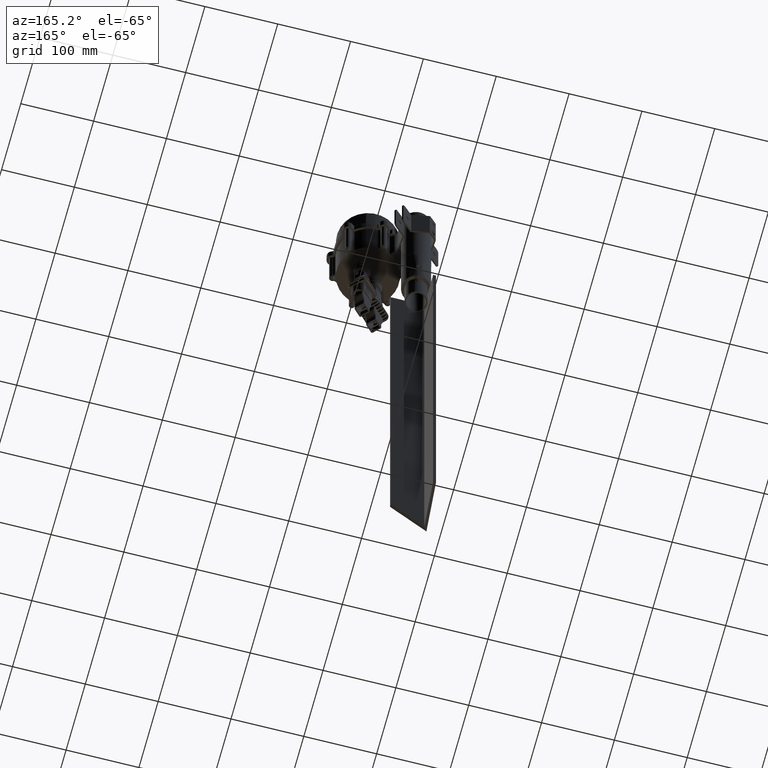
[diagram: clean part render]
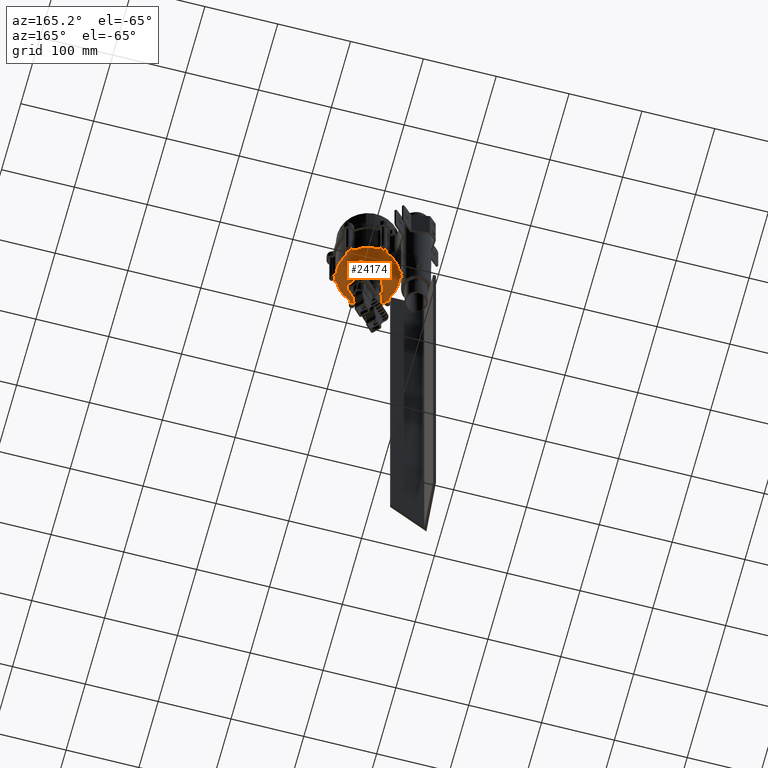
[diagram: same view with one face highlighted and labeled with its STEP entity id]
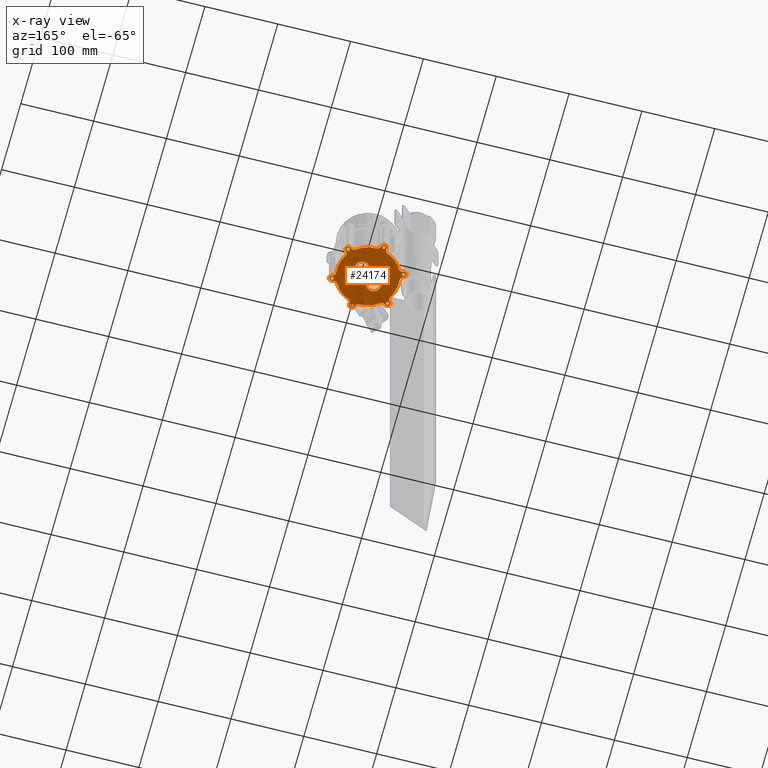
[diagram: x-ray of the same camera — body ghosted, the highlighted face saturated]
A machine part, auxiliary view. The second image highlights one B-rep face of the part: STEP entity #24174.
The next image is the same camera in x-ray: the body ghosted, the highlighted face saturated — about 14% of this face is hidden behind the body in this view.
In plain terms, the highlighted planar face has unit normal (-0, 0, -1).
Its self-contained STEP definition (entity closure, byte-faithful):
#108 = CIRCLE ( 'NONE', #30423, 4.000000000023018900 ) ;
#113 = CARTESIAN_POINT ( 'NONE',  ( -38.93620667977848600, -23.75000000000562000, 1.500000000000000000 ) ) ;
#174 = ORIENTED_EDGE ( 'NONE', *, *, #10640, .T. ) ;
#318 = VERTEX_POINT ( 'NONE', #30819 ) ;
#422 = EDGE_CURVE ( 'NONE', #3137, #16535, #16293, .T. ) ;
#434 = CARTESIAN_POINT ( 'NONE',  ( -5.771551933628297400E-012, -47.50000000001394800, 1.500000000000000000 ) ) ;
#480 = CIRCLE ( 'NONE', #15354, 4.000000000030991200 ) ;
#511 = ORIENTED_EDGE ( 'NONE', *, *, #24153, .T. ) ;
#559 = AXIS2_PLACEMENT_3D ( 'NONE', #27912, #10385, #30855 ) ;
#771 = ORIENTED_EDGE ( 'NONE', *, *, #24937, .F. ) ;
#807 = CARTESIAN_POINT ( 'NONE',  ( 3.982009403824622800, -47.12105263156519900, 1.500000000000000000 ) ) ;
#1006 = CIRCLE ( 'NONE', #7070, 42.49999999999246800 ) ;
#1009 = ORIENTED_EDGE ( 'NONE', *, *, #1590, .T. ) ;
#1175 = ORIENTED_EDGE ( 'NONE', *, *, #24431, .T. ) ;
#1206 = DIRECTION ( 'NONE',  ( 0.0000000000000000000, 0.0000000000000000000, 1.000000000000000000 ) ) ;
#1278 = DIRECTION ( 'NONE',  ( 1.000000000000000000, 0.0000000000000000000, 0.0000000000000000000 ) ) ;
#1352 = AXIS2_PLACEMENT_3D ( 'NONE', #10985, #31470, #13953 ) ;
#1389 = AXIS2_PLACEMENT_3D ( 'NONE', #27020, #9487, #29969 ) ;
#1590 = EDGE_CURVE ( 'NONE', #28727, #36876, #28159, .T. ) ;
#1620 = DIRECTION ( 'NONE',  ( 1.000000000000000000, 0.0000000000000000000, 0.0000000000000000000 ) ) ;
#1899 = DIRECTION ( 'NONE',  ( 0.0000000000000000000, 0.0000000000000000000, 1.000000000000000000 ) ) ;
#1900 = VERTEX_POINT ( 'NONE', #30148 ) ;
#2029 = ORIENTED_EDGE ( 'NONE', *, *, #24373, .T. ) ;
#2092 = EDGE_LOOP ( 'NONE', ( #16672, #27410 ) ) ;
#2167 = CIRCLE ( 'NONE', #8897, 4.000000000023018900 ) ;
#2203 = CIRCLE ( 'NONE', #15956, 5.000000000000628800 ) ;
#2340 = DIRECTION ( 'NONE',  ( 0.0000000000000000000, 0.0000000000000000000, 1.000000000000000000 ) ) ;
#2349 = CARTESIAN_POINT ( 'NONE',  ( -5.783186078220200300E-012, 47.50000000002078300, 1.500000000000000000 ) ) ;
#2550 = DIRECTION ( 'NONE',  ( -0.0000000000000000000, -0.0000000000000000000, -1.000000000000000000 ) ) ;
#2599 = EDGE_CURVE ( 'NONE', #33227, #24907, #25824, .T. ) ;
#2605 = CARTESIAN_POINT ( 'NONE',  ( -1.979319486089536900E-012, 3.428281914318197000E-012, 1.500000000000000000 ) ) ;
#2754 = CIRCLE ( 'NONE', #36968, 2.200000000008638200 ) ;
#2804 = DIRECTION ( 'NONE',  ( 0.0000000000000000000, 0.0000000000000000000, 1.000000000000000000 ) ) ;
#2820 = ORIENTED_EDGE ( 'NONE', *, *, #21328, .T. ) ;
#2898 = DIRECTION ( 'NONE',  ( 0.0000000000000000000, 0.0000000000000000000, 1.000000000000000000 ) ) ;
#2934 = VERTEX_POINT ( 'NONE', #10436 ) ;
#3000 = CARTESIAN_POINT ( 'NONE',  ( -2.200000000006302700, -47.50000000001394800, 1.500000000000000000 ) ) ;
#3076 = VERTEX_POINT ( 'NONE', #11061 ) ;
#3105 = ORIENTED_EDGE ( 'NONE', *, *, #18569, .F. ) ;
#3137 = VERTEX_POINT ( 'NONE', #26145 ) ;
#3176 = CIRCLE ( 'NONE', #11641, 4.000000000030993000 ) ;
#3223 = DIRECTION ( 'NONE',  ( 0.0000000000000000000, 0.0000000000000000000, 1.000000000000000000 ) ) ;
#3260 = CARTESIAN_POINT ( 'NONE',  ( -41.13620667977576800, 23.75000000001568500, 1.500000000000000000 ) ) ;
#3370 = DIRECTION ( 'NONE',  ( 1.000000000000000000, 0.0000000000000000000, 0.0000000000000000000 ) ) ;
#3445 = ORIENTED_EDGE ( 'NONE', *, *, #29789, .F. ) ;
#3664 = AXIS2_PLACEMENT_3D ( 'NONE', #4456, #24924, #7410 ) ;
#3803 = EDGE_CURVE ( 'NONE', #21455, #25286, #9309, .T. ) ;
#3857 = CARTESIAN_POINT ( 'NONE',  ( -41.13620667977576800, 23.75000000001568500, 1.500000000000000000 ) ) ;
#4152 = VERTEX_POINT ( 'NONE', #24969 ) ;
#4334 = CARTESIAN_POINT ( 'NONE',  ( -1.979319486089536900E-012, 3.428281914318197000E-012, 1.500000000000000000 ) ) ;
#4361 = AXIS2_PLACEMENT_3D ( 'NONE', #14025, #34505, #16950 ) ;
#4455 = CARTESIAN_POINT ( 'NONE',  ( 42.79903333391334300, -20.11200501395851200, 1.500000000000000000 ) ) ;
#4456 = CARTESIAN_POINT ( 'NONE',  ( -1.979319486089536900E-012, 3.428281914318197000E-012, 1.500000000000000000 ) ) ;
#4718 = CARTESIAN_POINT ( 'NONE',  ( -43.33620667977848500, -23.75000000000562000, 1.500000000000000000 ) ) ;
#4722 = EDGE_CURVE ( 'NONE', #16535, #11275, #21618, .T. ) ;
#4735 = DIRECTION ( 'NONE',  ( -0.0000000000000000000, -0.0000000000000000000, -1.000000000000000000 ) ) ;
#4762 = DIRECTION ( 'NONE',  ( 0.0000000000000000000, 0.0000000000000000000, 1.000000000000000000 ) ) ;
#4786 = EDGE_CURVE ( 'NONE', #36575, #31201, #32575, .T. ) ;
#5032 = CIRCLE ( 'NONE', #16312, 5.000000000000663500 ) ;
#5039 = ORIENTED_EDGE ( 'NONE', *, *, #18516, .T. ) ;
#5055 = CIRCLE ( 'NONE', #35428, 2.200000000001790700 ) ;
#5085 = VERTEX_POINT ( 'NONE', #6101 ) ;
#5158 = VERTEX_POINT ( 'NONE', #29880 ) ;
#5204 = AXIS2_PLACEMENT_3D ( 'NONE', #3857, #24317, #6803 ) ;
#5272 = EDGE_CURVE ( 'NONE', #33925, #13427, #11454, .T. ) ;
#5303 = DIRECTION ( 'NONE',  ( 1.000000000000000000, 0.0000000000000000000, 0.0000000000000000000 ) ) ;
#5387 = EDGE_CURVE ( 'NONE', #33479, #19343, #5055, .T. ) ;
#5424 = EDGE_CURVE ( 'NONE', #34093, #15663, #10993, .T. ) ;
#5513 = FACE_BOUND ( 'NONE', #11613, .T. ) ;
#5525 = DIRECTION ( 'NONE',  ( -0.0000000000000000000, -0.0000000000000000000, -1.000000000000000000 ) ) ;
#5531 = DIRECTION ( 'NONE',  ( 1.000000000000000000, 0.0000000000000000000, 0.0000000000000000000 ) ) ;
#5607 = VERTEX_POINT ( 'NONE', #35176 ) ;
#5627 = ORIENTED_EDGE ( 'NONE', *, *, #26041, .F. ) ;
#5938 = EDGE_CURVE ( 'NONE', #31379, #9607, #3176, .T. ) ;
#6049 = CARTESIAN_POINT ( 'NONE',  ( -3.982009403828170600, 47.12105263157203400, 1.500000000000000000 ) ) ;
#6101 = CARTESIAN_POINT ( 'NONE',  ( 8.016413668208022300, 41.73711911356343100, 1.500000000000000000 ) ) ;
#6146 = CARTESIAN_POINT ( 'NONE',  ( -1.979319486089536900E-012, 3.428281914318197000E-012, 1.500000000000000000 ) ) ;
#6219 = DIRECTION ( 'NONE',  ( 1.000000000000000000, 0.0000000000000000000, 0.0000000000000000000 ) ) ;
#6258 = CARTESIAN_POINT ( 'NONE',  ( -32.13719859902251800, -27.81097744068484100, 1.500000000000000000 ) ) ;
#6303 = DIRECTION ( 'NONE',  ( 0.0000000000000000000, 0.0000000000000000000, 1.000000000000000000 ) ) ;
#6428 = FACE_BOUND ( 'NONE', #26005, .T. ) ;
#6432 = ORIENTED_EDGE ( 'NONE', *, *, #26436, .T. ) ;
#6440 = AXIS2_PLACEMENT_3D ( 'NONE', #9699, #30161, #12614 ) ;
#6512 = CARTESIAN_POINT ( 'NONE',  ( -8.959521158581070600, 46.64736842104429100, 1.500000000000000000 ) ) ;
#6803 = DIRECTION ( 'NONE',  ( 1.000000000000000000, 0.0000000000000000000, 0.0000000000000000000 ) ) ;
#6825 = DIRECTION ( 'NONE',  ( 0.0000000000000000000, 0.0000000000000000000, 1.000000000000000000 ) ) ;
#6897 = VERTEX_POINT ( 'NONE', #31707 ) ;
#6945 = CIRCLE ( 'NONE', #21165, 2.200000000001790700 ) ;
#6972 = CIRCLE ( 'NONE', #1389, 5.000000000000656400 ) ;
#7070 = AXIS2_PLACEMENT_3D ( 'NONE', #17139, #37601, #20061 ) ;
#7129 = CARTESIAN_POINT ( 'NONE',  ( -35.91804549302035100, 31.08285713960380300, 1.500000000000000000 ) ) ;
#7147 = CIRCLE ( 'NONE', #3664, 42.49999999999246800 ) ;
#7242 = AXIS2_PLACEMENT_3D ( 'NONE', #23818, #6303, #26759 ) ;
#7279 = DIRECTION ( 'NONE',  ( 1.000000000000000000, 0.0000000000000000000, 0.0000000000000000000 ) ) ;
#7284 = CARTESIAN_POINT ( 'NONE',  ( -8.016413668211891200, -41.73711911355659500, 1.500000000000000000 ) ) ;
#7364 = CIRCLE ( 'NONE', #7242, 42.49999999999246100 ) ;
#7410 = DIRECTION ( 'NONE',  ( 1.000000000000000000, 0.0000000000000000000, 0.0000000000000000000 ) ) ;
#7420 = DIRECTION ( 'NONE',  ( -0.0000000000000000000, -0.0000000000000000000, -1.000000000000000000 ) ) ;
#7524 = VERTEX_POINT ( 'NONE', #28467 ) ;
#7683 = AXIS2_PLACEMENT_3D ( 'NONE', #12408, #32882, #15385 ) ;
#7776 = ORIENTED_EDGE ( 'NONE', *, *, #20283, .T. ) ;
#7803 = CARTESIAN_POINT ( 'NONE',  ( -10.12500000000197200, 14.00000000000343500, 1.500000000000000000 ) ) ;
#7874 = CIRCLE ( 'NONE', #13033, 2.200000000000531300 ) ;
#7982 = AXIS2_PLACEMENT_3D ( 'NONE', #7129, #27585, #10039 ) ;
#8096 = CARTESIAN_POINT ( 'NONE',  ( -5.783186078220200300E-012, 47.50000000002078300, 1.500000000000000000 ) ) ;
#8163 = CARTESIAN_POINT ( 'NONE',  ( -43.33620667977602600, 23.75000000001568500, 1.500000000000000000 ) ) ;
#8418 = ORIENTED_EDGE ( 'NONE', *, *, #20287, .T. ) ;
#8422 = CIRCLE ( 'NONE', #24630, 4.000000000030993000 ) ;
#8450 = CARTESIAN_POINT ( 'NONE',  ( 41.13620667977201600, -23.75000000000853400, 1.500000000000000000 ) ) ;
#8647 = CARTESIAN_POINT ( 'NONE',  ( -5.783186078220200300E-012, 47.50000000002078300, 1.500000000000000000 ) ) ;
#8769 = DIRECTION ( 'NONE',  ( -0.0000000000000000000, -0.0000000000000000000, -1.000000000000000000 ) ) ;
#8821 = ORIENTED_EDGE ( 'NONE', *, *, #2599, .F. ) ;
#8897 = AXIS2_PLACEMENT_3D ( 'NONE', #8647, #29126, #11570 ) ;
#9073 = DIRECTION ( 'NONE',  ( 1.000000000000000000, 0.0000000000000000000, 0.0000000000000000000 ) ) ;
#9091 = PLANE ( 'NONE',  #15043 ) ;
#9102 = CARTESIAN_POINT ( 'NONE',  ( 8.959521158569604200, 46.64736842104571200, 1.500000000000000000 ) ) ;
#9255 = ORIENTED_EDGE ( 'NONE', *, *, #23084, .T. ) ;
#9309 = CIRCLE ( 'NONE', #6440, 2.200000000001319100 ) ;
#9436 = DIRECTION ( 'NONE',  ( -1.000000000000000000, 0.0000000000000000000, 0.0000000000000000000 ) ) ;
#9487 = DIRECTION ( 'NONE',  ( -0.0000000000000000000, -0.0000000000000000000, -1.000000000000000000 ) ) ;
#9607 = VERTEX_POINT ( 'NONE', #4455 ) ;
#9672 = CIRCLE ( 'NONE', #4361, 2.200000000000264400 ) ;
#9699 = CARTESIAN_POINT ( 'NONE',  ( 41.13620667977201600, -23.75000000000853400, 1.500000000000000000 ) ) ;
#9776 = ORIENTED_EDGE ( 'NONE', *, *, #22803, .F. ) ;
#9920 = CARTESIAN_POINT ( 'NONE',  ( -5.783186078220200300E-012, 47.50000000002078300, 1.500000000000000000 ) ) ;
#9927 = CARTESIAN_POINT ( 'NONE',  ( 43.33620667977640300, 23.75000000001252000, 1.500000000000000000 ) ) ;
#10038 = CARTESIAN_POINT ( 'NONE',  ( 38.93620667977282300, 23.75000000001252000, 1.500000000000000000 ) ) ;
#10039 = DIRECTION ( 'NONE',  ( 1.000000000000000000, 0.0000000000000000000, 0.0000000000000000000 ) ) ;
#10096 = VERTEX_POINT ( 'NONE', #16052 ) ;
#10300 = DIRECTION ( 'NONE',  ( 0.0000000000000000000, 0.0000000000000000000, 1.000000000000000000 ) ) ;
#10367 = CARTESIAN_POINT ( 'NONE',  ( 44.87756665160110000, -15.56451128144292400, 1.500000000000000000 ) ) ;
#10385 = DIRECTION ( 'NONE',  ( 0.0000000000000000000, 0.0000000000000000000, 1.000000000000000000 ) ) ;
#10436 = CARTESIAN_POINT ( 'NONE',  ( 8.016413668199739100, -41.73711911355817300, 1.500000000000000000 ) ) ;
#10512 = AXIS2_PLACEMENT_3D ( 'NONE', #23074, #5525, #25992 ) ;
#10533 = EDGE_CURVE ( 'NONE', #5607, #27901, #6972, .T. ) ;
#10640 = EDGE_CURVE ( 'NONE', #34412, #36575, #32574, .T. ) ;
#10763 = AXIS2_PLACEMENT_3D ( 'NONE', #434, #20884, #3370 ) ;
#10814 = ORIENTED_EDGE ( 'NONE', *, *, #34274, .T. ) ;
#10985 = CARTESIAN_POINT ( 'NONE',  ( -5.783186078220200300E-012, 47.50000000002078300, 1.500000000000000000 ) ) ;
#10993 = CIRCLE ( 'NONE', #1352, 2.200000000008638200 ) ;
#11005 = DIRECTION ( 'NONE',  ( 1.000000000000000000, 0.0000000000000000000, 0.0000000000000000000 ) ) ;
#11055 = EDGE_LOOP ( 'NONE', ( #28934, #3445 ) ) ;
#11061 = CARTESIAN_POINT ( 'NONE',  ( -4.000000000028802700, 47.50000000002078300, 1.500000000000000000 ) ) ;
#11078 = CARTESIAN_POINT ( 'NONE',  ( 41.13620667977201600, -23.75000000000853400, 1.500000000000000000 ) ) ;
#11275 = VERTEX_POINT ( 'NONE', #33328 ) ;
#11347 = AXIS2_PLACEMENT_3D ( 'NONE', #19861, #2340, #22822 ) ;
#11362 = DIRECTION ( 'NONE',  ( 1.000000000000000000, 0.0000000000000000000, 0.0000000000000000000 ) ) ;
#11387 = CARTESIAN_POINT ( 'NONE',  ( -41.13620667977576800, 23.75000000001568500, 1.500000000000000000 ) ) ;
#11415 = EDGE_CURVE ( 'NONE', #35743, #19811, #9672, .T. ) ;
#11454 = CIRCLE ( 'NONE', #7982, 5.000000000000625300 ) ;
#11570 = DIRECTION ( 'NONE',  ( 1.000000000000000000, 0.0000000000000000000, 0.0000000000000000000 ) ) ;
#11613 = EDGE_LOOP ( 'NONE', ( #30833, #22202 ) ) ;
#11641 = AXIS2_PLACEMENT_3D ( 'NONE', #11078, #31551, #14037 ) ;
#11808 = EDGE_LOOP ( 'NONE', ( #511, #7776, #26317, #10814, #29337, #37029, #9255, #19977, #15856, #8418, #26917, #23956, #21282, #31152, #36598, #18015, #17210, #6432, #36536, #1009, #12713, #30013, #174, #33300, #22559, #35995, #22900, #27846, #2029, #1175, #5039, #31198, #22555, #2820, #13058 ) ) ;
#11829 = CIRCLE ( 'NONE', #28579, 10.12500000000000000 ) ;
#11888 = CARTESIAN_POINT ( 'NONE',  ( -40.15361226722568900, -13.92614167286565400, 1.500000000000000000 ) ) ;
#11902 = EDGE_CURVE ( 'NONE', #31201, #2934, #19681, .T. ) ;
#12027 = DIRECTION ( 'NONE',  ( 1.000000000000000000, 0.0000000000000000000, 0.0000000000000000000 ) ) ;
#12071 = AXIS2_PLACEMENT_3D ( 'NONE', #36350, #18745, #1278 ) ;
#12408 = CARTESIAN_POINT ( 'NONE',  ( -44.87756665160621600, -15.56451128143944000, 1.500000000000000000 ) ) ;
#12437 = AXIS2_PLACEMENT_3D ( 'NONE', #11387, #31891, #14364 ) ;
#12614 = DIRECTION ( 'NONE',  ( 1.000000000000000000, 0.0000000000000000000, 0.0000000000000000000 ) ) ;
#12713 = ORIENTED_EDGE ( 'NONE', *, *, #31779, .T. ) ;
#12825 = DIRECTION ( 'NONE',  ( 1.000000000000000000, 0.0000000000000000000, 0.0000000000000000000 ) ) ;
#13033 = AXIS2_PLACEMENT_3D ( 'NONE', #22285, #4762, #25203 ) ;
#13054 = ORIENTED_EDGE ( 'NONE', *, *, #31951, .F. ) ;
#13058 = ORIENTED_EDGE ( 'NONE', *, *, #17439, .T. ) ;
#13277 = EDGE_CURVE ( 'NONE', #25598, #28727, #29219, .T. ) ;
#13285 = FACE_BOUND ( 'NONE', #27619, .T. ) ;
#13297 = DIRECTION ( 'NONE',  ( -1.000000000000000000, 0.0000000000000000000, 0.0000000000000000000 ) ) ;
#13427 = VERTEX_POINT ( 'NONE', #35342 ) ;
#13460 = EDGE_CURVE ( 'NONE', #7524, #31379, #2203, .T. ) ;
#13471 = CARTESIAN_POINT ( 'NONE',  ( 8.959521158577514300, -46.64736842103736300, 1.500000000000000000 ) ) ;
#13554 = CIRCLE ( 'NONE', #10512, 5.000000000000632400 ) ;
#13573 = DIRECTION ( 'NONE',  ( -0.0000000000000000000, -0.0000000000000000000, -1.000000000000000000 ) ) ;
#13597 = CIRCLE ( 'NONE', #5204, 4.000000000030985900 ) ;
#13695 = DIRECTION ( 'NONE',  ( 0.0000000000000000000, 0.0000000000000000000, 1.000000000000000000 ) ) ;
#13723 = EDGE_CURVE ( 'NONE', #20334, #318, #22334, .T. ) ;
#13753 = VERTEX_POINT ( 'NONE', #19216 ) ;
#13953 = DIRECTION ( 'NONE',  ( 1.000000000000000000, 0.0000000000000000000, 0.0000000000000000000 ) ) ;
#13994 = DIRECTION ( 'NONE',  ( -0.0000000000000000000, -0.0000000000000000000, -1.000000000000000000 ) ) ;
#14008 = EDGE_CURVE ( 'NONE', #27901, #19886, #32800, .T. ) ;
#14025 = CARTESIAN_POINT ( 'NONE',  ( -41.13620667977576800, 23.75000000001568500, 1.500000000000000000 ) ) ;
#14037 = DIRECTION ( 'NONE',  ( 1.000000000000000000, 0.0000000000000000000, 0.0000000000000000000 ) ) ;
#14120 = ORIENTED_EDGE ( 'NONE', *, *, #14256, .F. ) ;
#14130 = EDGE_CURVE ( 'NONE', #29553, #5607, #13597, .T. ) ;
#14205 = FACE_BOUND ( 'NONE', #15396, .T. ) ;
#14256 = EDGE_CURVE ( 'NONE', #24907, #33227, #28308, .T. ) ;
#14364 = DIRECTION ( 'NONE',  ( 1.000000000000000000, 0.0000000000000000000, 0.0000000000000000000 ) ) ;
#14642 = CARTESIAN_POINT ( 'NONE',  ( 39.87756665160029700, 15.56451128145017100, 1.500000000000000000 ) ) ;
#14785 = EDGE_CURVE ( 'NONE', #4152, #3076, #2167, .T. ) ;
#14934 = CIRCLE ( 'NONE', #11347, 10.12500000000000000 ) ;
#14970 = CARTESIAN_POINT ( 'NONE',  ( 35.91804549301663500, -31.08285713959668300, 1.500000000000000000 ) ) ;
#15043 = AXIS2_PLACEMENT_3D ( 'NONE', #20869, #35600, #18023 ) ;
#15288 = EDGE_CURVE ( 'NONE', #25673, #37331, #14934, .T. ) ;
#15354 = AXIS2_PLACEMENT_3D ( 'NONE', #27829, #10300, #30761 ) ;
#15382 = CARTESIAN_POINT ( 'NONE',  ( -38.93620667977550200, 23.75000000001568500, 1.500000000000000000 ) ) ;
#15385 = DIRECTION ( 'NONE',  ( 1.000000000000000000, 0.0000000000000000000, 0.0000000000000000000 ) ) ;
#15396 = EDGE_LOOP ( 'NONE', ( #26771, #771 ) ) ;
#15470 = VERTEX_POINT ( 'NONE', #11888 ) ;
#15566 = VERTEX_POINT ( 'NONE', #21119 ) ;
#15571 = DIRECTION ( 'NONE',  ( 0.0000000000000000000, 0.0000000000000000000, 1.000000000000000000 ) ) ;
#15663 = VERTEX_POINT ( 'NONE', #15761 ) ;
#15761 = CARTESIAN_POINT ( 'NONE',  ( 2.200000000002855200, 47.50000000002078300, 1.500000000000000000 ) ) ;
#15767 = CARTESIAN_POINT ( 'NONE',  ( -42.49999999999444400, 3.428281914318197000E-012, 1.500000000000000000 ) ) ;
#15856 = ORIENTED_EDGE ( 'NONE', *, *, #5272, .T. ) ;
#15888 = CARTESIAN_POINT ( 'NONE',  ( -41.13620667977848200, -23.75000000000562000, 1.500000000000000000 ) ) ;
#15956 = AXIS2_PLACEMENT_3D ( 'NONE', #14970, #35475, #17891 ) ;
#15961 = AXIS2_PLACEMENT_3D ( 'NONE', #33086, #15571, #36063 ) ;
#16052 = CARTESIAN_POINT ( 'NONE',  ( -8.016413668203577800, 41.73711911356504300, 1.500000000000000000 ) ) ;
#16293 = CIRCLE ( 'NONE', #33041, 5.000000000000608400 ) ;
#16312 = AXIS2_PLACEMENT_3D ( 'NONE', #10367, #30838, #13297 ) ;
#16353 = CIRCLE ( 'NONE', #35249, 42.49999999999247500 ) ;
#16405 = DIRECTION ( 'NONE',  ( -1.000000000000000000, 0.0000000000000000000, 0.0000000000000000000 ) ) ;
#16408 = AXIS2_PLACEMENT_3D ( 'NONE', #9102, #29582, #12027 ) ;
#16535 = VERTEX_POINT ( 'NONE', #14642 ) ;
#16575 = AXIS2_PLACEMENT_3D ( 'NONE', #26303, #8769, #29240 ) ;
#16672 = ORIENTED_EDGE ( 'NONE', *, *, #23448, .F. ) ;
#16718 = EDGE_CURVE ( 'NONE', #29405, #13753, #8422, .T. ) ;
#16727 = CARTESIAN_POINT ( 'NONE',  ( 41.13620667977461700, 23.75000000001252000, 1.500000000000000000 ) ) ;
#16950 = DIRECTION ( 'NONE',  ( 1.000000000000000000, 0.0000000000000000000, 0.0000000000000000000 ) ) ;
#17114 = CARTESIAN_POINT ( 'NONE',  ( 38.81702393008310300, -27.00904761760992300, 1.500000000000000000 ) ) ;
#17139 = CARTESIAN_POINT ( 'NONE',  ( -1.979319486089536900E-012, 3.428281914318197000E-012, 1.500000000000000000 ) ) ;
#17206 = CIRCLE ( 'NONE', #10763, 4.000000000030991200 ) ;
#17210 = ORIENTED_EDGE ( 'NONE', *, *, #16718, .T. ) ;
#17337 = CARTESIAN_POINT ( 'NONE',  ( 38.93620667977069900, -23.75000000000853400, 1.500000000000000000 ) ) ;
#17439 = EDGE_CURVE ( 'NONE', #1900, #30421, #29923, .T. ) ;
#17452 = CARTESIAN_POINT ( 'NONE',  ( 41.13620667977461700, 23.75000000001252000, 1.500000000000000000 ) ) ;
#17637 = AXIS2_PLACEMENT_3D ( 'NONE', #22266, #4735, #25180 ) ;
#17671 = AXIS2_PLACEMENT_3D ( 'NONE', #8450, #28894, #11362 ) ;
#17891 = DIRECTION ( 'NONE',  ( 1.000000000000000000, 0.0000000000000000000, 0.0000000000000000000 ) ) ;
#18015 = ORIENTED_EDGE ( 'NONE', *, *, #22692, .T. ) ;
#18023 = DIRECTION ( 'NONE',  ( 1.000000000000000000, 0.0000000000000000000, -0.0000000000000000000 ) ) ;
#18463 = CIRCLE ( 'NONE', #21331, 4.000000000026919800 ) ;
#18516 = EDGE_CURVE ( 'NONE', #36868, #3137, #1006, .T. ) ;
#18569 = EDGE_CURVE ( 'NONE', #5158, #30350, #37193, .T. ) ;
#18667 = CARTESIAN_POINT ( 'NONE',  ( -5.771551933628297400E-012, -47.50000000001394800, 1.500000000000000000 ) ) ;
#18745 = DIRECTION ( 'NONE',  ( -0.0000000000000000000, -0.0000000000000000000, -1.000000000000000000 ) ) ;
#18783 = DIRECTION ( 'NONE',  ( 1.000000000000000000, 0.0000000000000000000, 0.0000000000000000000 ) ) ;
#18932 = EDGE_LOOP ( 'NONE', ( #5627, #31009 ) ) ;
#19099 = DIRECTION ( 'NONE',  ( 0.0000000000000000000, 0.0000000000000000000, 1.000000000000000000 ) ) ;
#19216 = CARTESIAN_POINT ( 'NONE',  ( -38.81702393008940500, -27.00904761760689600, 1.500000000000000000 ) ) ;
#19324 = CIRCLE ( 'NONE', #7683, 5.000000000000621700 ) ;
#19343 = VERTEX_POINT ( 'NONE', #10038 ) ;
#19397 = CARTESIAN_POINT ( 'NONE',  ( -1.968931363190846600E-012, -13.99999999999656600, 1.500000000000000000 ) ) ;
#19414 = CIRCLE ( 'NONE', #21047, 42.49999999999246800 ) ;
#19631 = DIRECTION ( 'NONE',  ( 1.000000000000000000, 0.0000000000000000000, 0.0000000000000000000 ) ) ;
#19674 = VERTEX_POINT ( 'NONE', #6049 ) ;
#19681 = CIRCLE ( 'NONE', #30347, 5.000000000000656400 ) ;
#19811 = VERTEX_POINT ( 'NONE', #15382 ) ;
#19861 = CARTESIAN_POINT ( 'NONE',  ( -1.970645868709652900E-012, 14.00000000000343500, 1.500000000000000000 ) ) ;
#19886 = VERTEX_POINT ( 'NONE', #15767 ) ;
#19977 = ORIENTED_EDGE ( 'NONE', *, *, #28737, .T. ) ;
#20008 = CIRCLE ( 'NONE', #28837, 10.12500000000000000 ) ;
#20042 = CARTESIAN_POINT ( 'NONE',  ( 44.87756665160090800, 15.56451128145017100, 1.500000000000000000 ) ) ;
#20061 = DIRECTION ( 'NONE',  ( 1.000000000000000000, 0.0000000000000000000, 0.0000000000000000000 ) ) ;
#20283 = EDGE_CURVE ( 'NONE', #5085, #21560, #13554, .T. ) ;
#20287 = EDGE_CURVE ( 'NONE', #13427, #29553, #29116, .T. ) ;
#20321 = CARTESIAN_POINT ( 'NONE',  ( -5.771551933628297400E-012, -47.50000000001394800, 1.500000000000000000 ) ) ;
#20328 = EDGE_CURVE ( 'NONE', #21560, #29567, #28198, .T. ) ;
#20334 = VERTEX_POINT ( 'NONE', #37768 ) ;
#20408 = CARTESIAN_POINT ( 'NONE',  ( -1.970645868709652900E-012, 14.00000000000343500, 1.500000000000000000 ) ) ;
#20410 = DIRECTION ( 'NONE',  ( 1.000000000000000000, 0.0000000000000000000, 0.0000000000000000000 ) ) ;
#20763 = CARTESIAN_POINT ( 'NONE',  ( -1.979319486089536900E-012, 3.428281914318197000E-012, 1.500000000000000000 ) ) ;
#20782 = AXIS2_PLACEMENT_3D ( 'NONE', #20321, #2804, #23287 ) ;
#20827 = CIRCLE ( 'NONE', #21813, 4.000000000023018900 ) ;
#20869 = CARTESIAN_POINT ( 'NONE',  ( 4.479760579283811800, 23.32368421052457200, 1.500000000000000000 ) ) ;
#20884 = DIRECTION ( 'NONE',  ( 0.0000000000000000000, 0.0000000000000000000, 1.000000000000000000 ) ) ;
#20890 = CIRCLE ( 'NONE', #27394, 5.000000000000656400 ) ;
#20978 = AXIS2_PLACEMENT_3D ( 'NONE', #18667, #1206, #21663 ) ;
#21047 = AXIS2_PLACEMENT_3D ( 'NONE', #6146, #26597, #9073 ) ;
#21057 = FACE_BOUND ( 'NONE', #11055, .T. ) ;
#21119 = CARTESIAN_POINT ( 'NONE',  ( -42.79903333391997200, -20.11200501395567700, 1.500000000000000000 ) ) ;
#21136 = CARTESIAN_POINT ( 'NONE',  ( -32.13719859901701900, 27.81097744069805300, 1.500000000000000000 ) ) ;
#21165 = AXIS2_PLACEMENT_3D ( 'NONE', #17452, #29926, #20410 ) ;
#21282 = ORIENTED_EDGE ( 'NONE', *, *, #14008, .T. ) ;
#21328 = EDGE_CURVE ( 'NONE', #11275, #1900, #18463, .T. ) ;
#21331 = AXIS2_PLACEMENT_3D ( 'NONE', #16727, #37219, #19631 ) ;
#21455 = VERTEX_POINT ( 'NONE', #17337 ) ;
#21560 = VERTEX_POINT ( 'NONE', #29495 ) ;
#21618 = CIRCLE ( 'NONE', #12071, 5.000000000000608400 ) ;
#21663 = DIRECTION ( 'NONE',  ( 1.000000000000000000, 0.0000000000000000000, 0.0000000000000000000 ) ) ;
#21813 = AXIS2_PLACEMENT_3D ( 'NONE', #8096, #28551, #11005 ) ;
#21991 = FACE_BOUND ( 'NONE', #23213, .T. ) ;
#22135 = CIRCLE ( 'NONE', #31428, 2.200000000000264400 ) ;
#22202 = ORIENTED_EDGE ( 'NONE', *, *, #29901, .F. ) ;
#22266 = CARTESIAN_POINT ( 'NONE',  ( -8.959521158588879400, -46.64736842103590000, 1.500000000000000000 ) ) ;
#22285 = CARTESIAN_POINT ( 'NONE',  ( -5.771551933628297400E-012, -47.50000000001394800, 1.500000000000000000 ) ) ;
#22334 = CIRCLE ( 'NONE', #32856, 10.12500000000000000 ) ;
#22365 = DIRECTION ( 'NONE',  ( 1.000000000000000000, 0.0000000000000000000, 0.0000000000000000000 ) ) ;
#22555 = ORIENTED_EDGE ( 'NONE', *, *, #4722, .T. ) ;
#22559 = ORIENTED_EDGE ( 'NONE', *, *, #11902, .T. ) ;
#22692 = EDGE_CURVE ( 'NONE', #15566, #29405, #36741, .T. ) ;
#22803 = EDGE_CURVE ( 'NONE', #30350, #5158, #7874, .T. ) ;
#22822 = DIRECTION ( 'NONE',  ( 1.000000000000000000, 0.0000000000000000000, 0.0000000000000000000 ) ) ;
#22828 = DIRECTION ( 'NONE',  ( 0.0000000000000000000, 0.0000000000000000000, 1.000000000000000000 ) ) ;
#22900 = ORIENTED_EDGE ( 'NONE', *, *, #13460, .T. ) ;
#23014 = DIRECTION ( 'NONE',  ( 1.000000000000000000, 0.0000000000000000000, 0.0000000000000000000 ) ) ;
#23074 = CARTESIAN_POINT ( 'NONE',  ( 8.959521158569604200, 46.64736842104571200, 1.500000000000000000 ) ) ;
#23077 = DIRECTION ( 'NONE',  ( 0.0000000000000000000, 0.0000000000000000000, 1.000000000000000000 ) ) ;
#23084 = EDGE_CURVE ( 'NONE', #19674, #10096, #24275, .T. ) ;
#23213 = EDGE_LOOP ( 'NONE', ( #14120, #8821 ) ) ;
#23287 = DIRECTION ( 'NONE',  ( 1.000000000000000000, 0.0000000000000000000, 0.0000000000000000000 ) ) ;
#23362 = DIRECTION ( 'NONE',  ( 1.000000000000000000, 0.0000000000000000000, 0.0000000000000000000 ) ) ;
#23448 = EDGE_CURVE ( 'NONE', #19343, #33479, #6945, .T. ) ;
#23608 = AXIS2_PLACEMENT_3D ( 'NONE', #20763, #3223, #23711 ) ;
#23711 = DIRECTION ( 'NONE',  ( 1.000000000000000000, 0.0000000000000000000, 0.0000000000000000000 ) ) ;
#23736 = DIRECTION ( 'NONE',  ( 0.0000000000000000000, 0.0000000000000000000, 1.000000000000000000 ) ) ;
#23818 = CARTESIAN_POINT ( 'NONE',  ( -1.979319486089536900E-012, 3.428281914318197000E-012, 1.500000000000000000 ) ) ;
#23833 = CARTESIAN_POINT ( 'NONE',  ( 32.13719859901861000, 27.81097744069164800, 1.500000000000000000 ) ) ;
#23869 = AXIS2_PLACEMENT_3D ( 'NONE', #24929, #7420, #27878 ) ;
#23956 = ORIENTED_EDGE ( 'NONE', *, *, #10533, .T. ) ;
#24153 = EDGE_CURVE ( 'NONE', #30421, #5085, #7364, .T. ) ;
#24174 = ADVANCED_FACE ( 'NONE', ( #21991, #14205, #29756, #6428, #36668, #28845, #21057, #13285, #5513 ), #9091, .T. ) ;
#24275 = CIRCLE ( 'NONE', #24581, 5.000000000000658100 ) ;
#24317 = DIRECTION ( 'NONE',  ( 0.0000000000000000000, 0.0000000000000000000, 1.000000000000000000 ) ) ;
#24341 = CARTESIAN_POINT ( 'NONE',  ( -41.13620667977848200, -23.75000000000562000, 1.500000000000000000 ) ) ;
#24373 = EDGE_CURVE ( 'NONE', #9607, #31039, #5032, .T. ) ;
#24431 = EDGE_CURVE ( 'NONE', #31039, #36868, #33394, .T. ) ;
#24581 = AXIS2_PLACEMENT_3D ( 'NONE', #6512, #26964, #9436 ) ;
#24630 = AXIS2_PLACEMENT_3D ( 'NONE', #24341, #6825, #27308 ) ;
#24710 = CARTESIAN_POINT ( 'NONE',  ( -2.200000000014421500, 47.50000000002078300, 1.500000000000000000 ) ) ;
#24780 = DIRECTION ( 'NONE',  ( 0.0000000000000000000, 0.0000000000000000000, 1.000000000000000000 ) ) ;
#24887 = CIRCLE ( 'NONE', #17671, 2.200000000001319100 ) ;
#24907 = VERTEX_POINT ( 'NONE', #4718 ) ;
#24924 = DIRECTION ( 'NONE',  ( 0.0000000000000000000, 0.0000000000000000000, 1.000000000000000000 ) ) ;
#24929 = CARTESIAN_POINT ( 'NONE',  ( 8.959521158577514300, -46.64736842103736300, 1.500000000000000000 ) ) ;
#24937 = EDGE_CURVE ( 'NONE', #318, #20334, #11829, .T. ) ;
#24969 = CARTESIAN_POINT ( 'NONE',  ( 4.000000000017235100, 47.50000000002078300, 1.500000000000000000 ) ) ;
#25042 = CARTESIAN_POINT ( 'NONE',  ( 3.959521158576857000, -46.64736842103736300, 1.500000000000000000 ) ) ;
#25180 = DIRECTION ( 'NONE',  ( 1.000000000000000000, 0.0000000000000000000, 0.0000000000000000000 ) ) ;
#25203 = DIRECTION ( 'NONE',  ( 1.000000000000000000, 0.0000000000000000000, 0.0000000000000000000 ) ) ;
#25286 = VERTEX_POINT ( 'NONE', #36217 ) ;
#25598 = VERTEX_POINT ( 'NONE', #6258 ) ;
#25673 = VERTEX_POINT ( 'NONE', #36064 ) ;
#25824 = CIRCLE ( 'NONE', #15961, 2.200000000000000600 ) ;
#25992 = DIRECTION ( 'NONE',  ( 1.000000000000000000, 0.0000000000000000000, 0.0000000000000000000 ) ) ;
#26005 = EDGE_LOOP ( 'NONE', ( #31302, #13054 ) ) ;
#26041 = EDGE_CURVE ( 'NONE', #37331, #25673, #20008, .T. ) ;
#26097 = AXIS2_PLACEMENT_3D ( 'NONE', #31082, #13573, #34043 ) ;
#26145 = CARTESIAN_POINT ( 'NONE',  ( 40.15361226722301800, 13.92614167286880400, 1.500000000000000000 ) ) ;
#26303 = CARTESIAN_POINT ( 'NONE',  ( 35.91804549302184300, 31.08285713959757500, 1.500000000000000000 ) ) ;
#26317 = ORIENTED_EDGE ( 'NONE', *, *, #20328, .T. ) ;
#26436 = EDGE_CURVE ( 'NONE', #13753, #25598, #20890, .T. ) ;
#26597 = DIRECTION ( 'NONE',  ( 0.0000000000000000000, 0.0000000000000000000, 1.000000000000000000 ) ) ;
#26759 = DIRECTION ( 'NONE',  ( 1.000000000000000000, 0.0000000000000000000, 0.0000000000000000000 ) ) ;
#26771 = ORIENTED_EDGE ( 'NONE', *, *, #13723, .F. ) ;
#26917 = ORIENTED_EDGE ( 'NONE', *, *, #14130, .T. ) ;
#26964 = DIRECTION ( 'NONE',  ( -0.0000000000000000000, -0.0000000000000000000, -1.000000000000000000 ) ) ;
#27020 = CARTESIAN_POINT ( 'NONE',  ( -44.87756665160493000, 15.56451128145012100, 1.500000000000000000 ) ) ;
#27246 = CARTESIAN_POINT ( 'NONE',  ( 39.87756665160043900, -15.56451128144292400, 1.500000000000000000 ) ) ;
#27308 = DIRECTION ( 'NONE',  ( 1.000000000000000000, 0.0000000000000000000, 0.0000000000000000000 ) ) ;
#27394 = AXIS2_PLACEMENT_3D ( 'NONE', #31511, #13994, #34468 ) ;
#27410 = ORIENTED_EDGE ( 'NONE', *, *, #5387, .F. ) ;
#27585 = DIRECTION ( 'NONE',  ( -0.0000000000000000000, -0.0000000000000000000, -1.000000000000000000 ) ) ;
#27619 = EDGE_LOOP ( 'NONE', ( #9776, #3105 ) ) ;
#27829 = CARTESIAN_POINT ( 'NONE',  ( -5.771551933628297400E-012, -47.50000000001394800, 1.500000000000000000 ) ) ;
#27846 = ORIENTED_EDGE ( 'NONE', *, *, #5938, .T. ) ;
#27878 = DIRECTION ( 'NONE',  ( -1.000000000000000000, 0.0000000000000000000, 0.0000000000000000000 ) ) ;
#27901 = VERTEX_POINT ( 'NONE', #28202 ) ;
#27912 = CARTESIAN_POINT ( 'NONE',  ( -41.13620667977848200, -23.75000000000562000, 1.500000000000000000 ) ) ;
#28159 = CIRCLE ( 'NONE', #17637, 5.000000000000619900 ) ;
#28198 = CIRCLE ( 'NONE', #16408, 5.000000000000632400 ) ;
#28202 = CARTESIAN_POINT ( 'NONE',  ( -40.15361226722420400, 13.92614167287679200, 1.500000000000000000 ) ) ;
#28308 = CIRCLE ( 'NONE', #559, 2.200000000000000600 ) ;
#28467 = CARTESIAN_POINT ( 'NONE',  ( 32.13719859901309700, -27.81097744069117500, 1.500000000000000000 ) ) ;
#28551 = DIRECTION ( 'NONE',  ( 0.0000000000000000000, 0.0000000000000000000, 1.000000000000000000 ) ) ;
#28579 = AXIS2_PLACEMENT_3D ( 'NONE', #19397, #1899, #22365 ) ;
#28727 = VERTEX_POINT ( 'NONE', #7284 ) ;
#28737 = EDGE_CURVE ( 'NONE', #10096, #33925, #7147, .T. ) ;
#28837 = AXIS2_PLACEMENT_3D ( 'NONE', #20408, #2898, #23362 ) ;
#28845 = FACE_BOUND ( 'NONE', #18932, .T. ) ;
#28894 = DIRECTION ( 'NONE',  ( 0.0000000000000000000, 0.0000000000000000000, 1.000000000000000000 ) ) ;
#28934 = ORIENTED_EDGE ( 'NONE', *, *, #3803, .F. ) ;
#29116 = CIRCLE ( 'NONE', #12437, 4.000000000030985900 ) ;
#29126 = DIRECTION ( 'NONE',  ( 0.0000000000000000000, 0.0000000000000000000, 1.000000000000000000 ) ) ;
#29219 = CIRCLE ( 'NONE', #29898, 42.49999999999247500 ) ;
#29240 = DIRECTION ( 'NONE',  ( -1.000000000000000000, 0.0000000000000000000, 0.0000000000000000000 ) ) ;
#29337 = ORIENTED_EDGE ( 'NONE', *, *, #14785, .T. ) ;
#29405 = VERTEX_POINT ( 'NONE', #29822 ) ;
#29495 = CARTESIAN_POINT ( 'NONE',  ( 3.959521158568971800, 46.64736842104571200, 1.500000000000000000 ) ) ;
#29553 = VERTEX_POINT ( 'NONE', #36502 ) ;
#29567 = VERTEX_POINT ( 'NONE', #33658 ) ;
#29582 = DIRECTION ( 'NONE',  ( -0.0000000000000000000, -0.0000000000000000000, -1.000000000000000000 ) ) ;
#29756 = FACE_BOUND ( 'NONE', #2092, .T. ) ;
#29789 = EDGE_CURVE ( 'NONE', #25286, #21455, #24887, .T. ) ;
#29822 = CARTESIAN_POINT ( 'NONE',  ( -45.13620667980947600, -23.75000000000562000, 1.500000000000000000 ) ) ;
#29880 = CARTESIAN_POINT ( 'NONE',  ( 2.199999999994759900, -47.50000000001394800, 1.500000000000000000 ) ) ;
#29898 = AXIS2_PLACEMENT_3D ( 'NONE', #2605, #23077, #5531 ) ;
#29901 = EDGE_CURVE ( 'NONE', #19811, #35743, #22135, .T. ) ;
#29923 = CIRCLE ( 'NONE', #16575, 5.000000000000663500 ) ;
#29926 = DIRECTION ( 'NONE',  ( 0.0000000000000000000, 0.0000000000000000000, 1.000000000000000000 ) ) ;
#29969 = DIRECTION ( 'NONE',  ( -1.000000000000000000, 0.0000000000000000000, 0.0000000000000000000 ) ) ;
#30013 = ORIENTED_EDGE ( 'NONE', *, *, #33878, .T. ) ;
#30148 = CARTESIAN_POINT ( 'NONE',  ( 38.81702393008689700, 27.00904761760976700, 1.500000000000000000 ) ) ;
#30161 = DIRECTION ( 'NONE',  ( 0.0000000000000000000, 0.0000000000000000000, 1.000000000000000000 ) ) ;
#30347 = AXIS2_PLACEMENT_3D ( 'NONE', #13471, #33928, #16405 ) ;
#30350 = VERTEX_POINT ( 'NONE', #3000 ) ;
#30387 = DIRECTION ( 'NONE',  ( 0.0000000000000000000, 0.0000000000000000000, 1.000000000000000000 ) ) ;
#30421 = VERTEX_POINT ( 'NONE', #23833 ) ;
#30423 = AXIS2_PLACEMENT_3D ( 'NONE', #9920, #30387, #12825 ) ;
#30470 = EDGE_CURVE ( 'NONE', #15470, #15566, #19324, .T. ) ;
#30761 = DIRECTION ( 'NONE',  ( 1.000000000000000000, 0.0000000000000000000, 0.0000000000000000000 ) ) ;
#30819 = CARTESIAN_POINT ( 'NONE',  ( 10.12499999999803200, -13.99999999999656500, 1.500000000000000000 ) ) ;
#30833 = ORIENTED_EDGE ( 'NONE', *, *, #11415, .F. ) ;
#30838 = DIRECTION ( 'NONE',  ( -0.0000000000000000000, -0.0000000000000000000, -1.000000000000000000 ) ) ;
#30855 = DIRECTION ( 'NONE',  ( 1.000000000000000000, 0.0000000000000000000, 0.0000000000000000000 ) ) ;
#31009 = ORIENTED_EDGE ( 'NONE', *, *, #15288, .F. ) ;
#31039 = VERTEX_POINT ( 'NONE', #27246 ) ;
#31082 = CARTESIAN_POINT ( 'NONE',  ( 44.87756665160110000, -15.56451128144292400, 1.500000000000000000 ) ) ;
#31152 = ORIENTED_EDGE ( 'NONE', *, *, #34494, .T. ) ;
#31198 = ORIENTED_EDGE ( 'NONE', *, *, #422, .T. ) ;
#31201 = VERTEX_POINT ( 'NONE', #25042 ) ;
#31218 = CARTESIAN_POINT ( 'NONE',  ( 41.13620667977461700, 23.75000000001252000, 1.500000000000000000 ) ) ;
#31232 = CARTESIAN_POINT ( 'NONE',  ( -3.982009403836183300, -47.12105263156538400, 1.500000000000000000 ) ) ;
#31302 = ORIENTED_EDGE ( 'NONE', *, *, #5424, .F. ) ;
#31379 = VERTEX_POINT ( 'NONE', #17114 ) ;
#31428 = AXIS2_PLACEMENT_3D ( 'NONE', #3260, #23736, #6219 ) ;
#31470 = DIRECTION ( 'NONE',  ( 0.0000000000000000000, 0.0000000000000000000, 1.000000000000000000 ) ) ;
#31511 = CARTESIAN_POINT ( 'NONE',  ( -35.91804549302310800, -31.08285713959380900, 1.500000000000000000 ) ) ;
#31551 = DIRECTION ( 'NONE',  ( 0.0000000000000000000, 0.0000000000000000000, 1.000000000000000000 ) ) ;
#31707 = CARTESIAN_POINT ( 'NONE',  ( -4.000000000036762600, -47.50000000001394800, 1.500000000000000000 ) ) ;
#31779 = EDGE_CURVE ( 'NONE', #36876, #6897, #480, .T. ) ;
#31891 = DIRECTION ( 'NONE',  ( 0.0000000000000000000, 0.0000000000000000000, 1.000000000000000000 ) ) ;
#31951 = EDGE_CURVE ( 'NONE', #15663, #34093, #2754, .T. ) ;
#31986 = CARTESIAN_POINT ( 'NONE',  ( 4.000000000025219800, -47.50000000001394800, 1.500000000000000000 ) ) ;
#32574 = CIRCLE ( 'NONE', #20978, 4.000000000030991200 ) ;
#32575 = CIRCLE ( 'NONE', #23869, 5.000000000000656400 ) ;
#32800 = CIRCLE ( 'NONE', #23608, 42.49999999999246800 ) ;
#32856 = AXIS2_PLACEMENT_3D ( 'NONE', #36682, #19099, #1620 ) ;
#32882 = DIRECTION ( 'NONE',  ( -0.0000000000000000000, -0.0000000000000000000, -1.000000000000000000 ) ) ;
#32979 = EDGE_CURVE ( 'NONE', #2934, #7524, #16353, .T. ) ;
#33041 = AXIS2_PLACEMENT_3D ( 'NONE', #20042, #2550, #23014 ) ;
#33086 = CARTESIAN_POINT ( 'NONE',  ( -41.13620667977848200, -23.75000000000562000, 1.500000000000000000 ) ) ;
#33227 = VERTEX_POINT ( 'NONE', #113 ) ;
#33300 = ORIENTED_EDGE ( 'NONE', *, *, #4786, .T. ) ;
#33328 = CARTESIAN_POINT ( 'NONE',  ( 42.79903333391442300, 20.11200501396628600, 1.500000000000000000 ) ) ;
#33361 = AXIS2_PLACEMENT_3D ( 'NONE', #15888, #36386, #18783 ) ;
#33394 = CIRCLE ( 'NONE', #26097, 5.000000000000663500 ) ;
#33479 = VERTEX_POINT ( 'NONE', #9927 ) ;
#33658 = CARTESIAN_POINT ( 'NONE',  ( 3.982009403816684700, 47.12105263157297900, 1.500000000000000000 ) ) ;
#33878 = EDGE_CURVE ( 'NONE', #6897, #34412, #17206, .T. ) ;
#33925 = VERTEX_POINT ( 'NONE', #21136 ) ;
#33928 = DIRECTION ( 'NONE',  ( -0.0000000000000000000, -0.0000000000000000000, -1.000000000000000000 ) ) ;
#34043 = DIRECTION ( 'NONE',  ( -1.000000000000000000, 0.0000000000000000000, 0.0000000000000000000 ) ) ;
#34057 = CARTESIAN_POINT ( 'NONE',  ( 40.15361226722026800, -13.92614167286991000, 1.500000000000000000 ) ) ;
#34093 = VERTEX_POINT ( 'NONE', #24710 ) ;
#34173 = DIRECTION ( 'NONE',  ( 1.000000000000000000, 0.0000000000000000000, 0.0000000000000000000 ) ) ;
#34274 = EDGE_CURVE ( 'NONE', #29567, #4152, #20827, .T. ) ;
#34412 = VERTEX_POINT ( 'NONE', #31986 ) ;
#34468 = DIRECTION ( 'NONE',  ( -1.000000000000000000, 0.0000000000000000000, 0.0000000000000000000 ) ) ;
#34494 = EDGE_CURVE ( 'NONE', #19886, #15470, #19414, .T. ) ;
#34505 = DIRECTION ( 'NONE',  ( 0.0000000000000000000, 0.0000000000000000000, 1.000000000000000000 ) ) ;
#35176 = CARTESIAN_POINT ( 'NONE',  ( -42.79903333391708700, 20.11200501396566800, 1.500000000000000000 ) ) ;
#35249 = AXIS2_PLACEMENT_3D ( 'NONE', #4334, #24780, #7279 ) ;
#35342 = CARTESIAN_POINT ( 'NONE',  ( -38.81702393008685400, 27.00904761761707800, 1.500000000000000000 ) ) ;
#35428 = AXIS2_PLACEMENT_3D ( 'NONE', #31218, #13695, #34173 ) ;
#35475 = DIRECTION ( 'NONE',  ( -0.0000000000000000000, -0.0000000000000000000, -1.000000000000000000 ) ) ;
#35600 = DIRECTION ( 'NONE',  ( 0.0000000000000000000, 0.0000000000000000000, 1.000000000000000000 ) ) ;
#35743 = VERTEX_POINT ( 'NONE', #8163 ) ;
#35995 = ORIENTED_EDGE ( 'NONE', *, *, #32979, .T. ) ;
#36063 = DIRECTION ( 'NONE',  ( 1.000000000000000000, 0.0000000000000000000, 0.0000000000000000000 ) ) ;
#36064 = CARTESIAN_POINT ( 'NONE',  ( 10.12499999999803000, 14.00000000000343700, 1.500000000000000000 ) ) ;
#36090 = EDGE_CURVE ( 'NONE', #3076, #19674, #108, .T. ) ;
#36217 = CARTESIAN_POINT ( 'NONE',  ( 43.33620667977334100, -23.75000000000853400, 1.500000000000000000 ) ) ;
#36350 = CARTESIAN_POINT ( 'NONE',  ( 44.87756665160090800, 15.56451128145017100, 1.500000000000000000 ) ) ;
#36386 = DIRECTION ( 'NONE',  ( 0.0000000000000000000, 0.0000000000000000000, 1.000000000000000000 ) ) ;
#36502 = CARTESIAN_POINT ( 'NONE',  ( -45.13620667980674700, 23.75000000001568500, 1.500000000000000000 ) ) ;
#36536 = ORIENTED_EDGE ( 'NONE', *, *, #13277, .T. ) ;
#36575 = VERTEX_POINT ( 'NONE', #807 ) ;
#36598 = ORIENTED_EDGE ( 'NONE', *, *, #30470, .T. ) ;
#36668 = FACE_OUTER_BOUND ( 'NONE', #11808, .T. ) ;
#36682 = CARTESIAN_POINT ( 'NONE',  ( -1.968931363190846600E-012, -13.99999999999656600, 1.500000000000000000 ) ) ;
#36741 = CIRCLE ( 'NONE', #33361, 4.000000000030993000 ) ;
#36868 = VERTEX_POINT ( 'NONE', #34057 ) ;
#36876 = VERTEX_POINT ( 'NONE', #31232 ) ;
#36968 = AXIS2_PLACEMENT_3D ( 'NONE', #2349, #22828, #5303 ) ;
#37029 = ORIENTED_EDGE ( 'NONE', *, *, #36090, .T. ) ;
#37193 = CIRCLE ( 'NONE', #20782, 2.200000000000531300 ) ;
#37219 = DIRECTION ( 'NONE',  ( 0.0000000000000000000, 0.0000000000000000000, 1.000000000000000000 ) ) ;
#37331 = VERTEX_POINT ( 'NONE', #7803 ) ;
#37601 = DIRECTION ( 'NONE',  ( 0.0000000000000000000, 0.0000000000000000000, 1.000000000000000000 ) ) ;
#37768 = CARTESIAN_POINT ( 'NONE',  ( -10.12500000000197000, -13.99999999999656600, 1.500000000000000000 ) ) ;